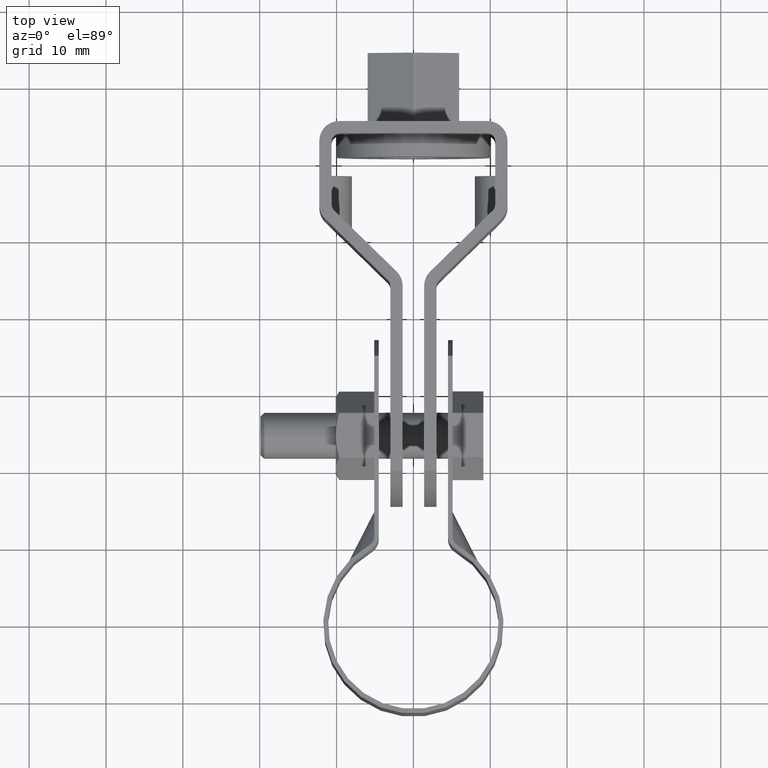
[diagram: clean part render]
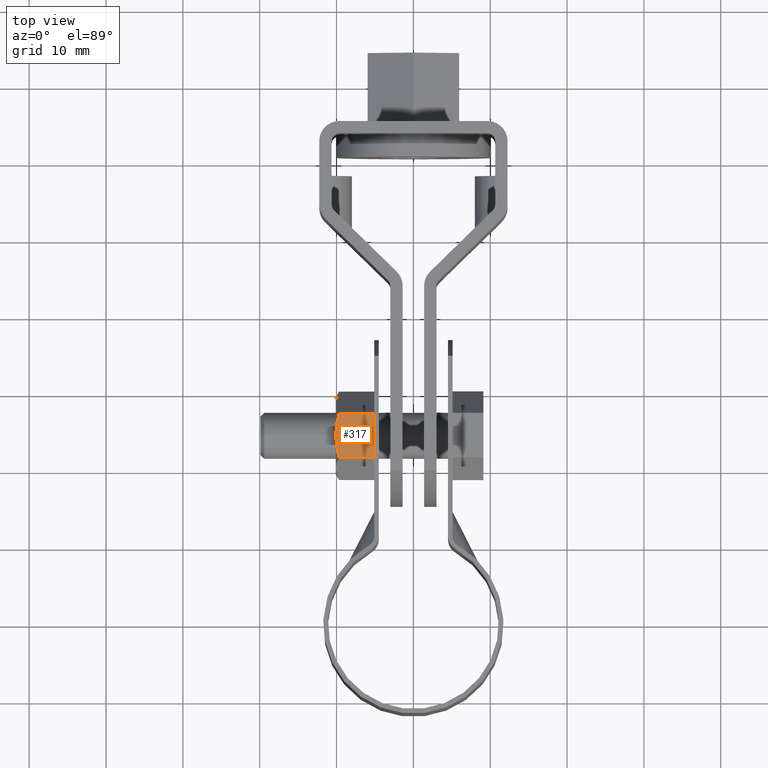
[diagram: same view with one face highlighted and labeled with its STEP entity id]
A machine part, top view. The second image highlights one B-rep face of the part: STEP entity #317.
In plain terms, the highlighted planar face has unit normal (0, 0, -1).
Its self-contained STEP definition (entity closure, byte-faithful):
#317 = ADVANCED_FACE( '', ( #501 ), #502, .F. );
#501 = FACE_OUTER_BOUND( '', #773, .T. );
#502 = PLANE( '', #774 );
#773 = EDGE_LOOP( '', ( #1343, #1344, #1345, #1346, #1347 ) );
#774 = AXIS2_PLACEMENT_3D( '', #1348, #1349, #1350 );
#1343 = ORIENTED_EDGE( '', *, *, #2077, .F. );
#1344 = ORIENTED_EDGE( '', *, *, #2044, .F. );
#1345 = ORIENTED_EDGE( '', *, *, #2078, .F. );
#1346 = ORIENTED_EDGE( '', *, *, #2061, .F. );
#1347 = ORIENTED_EDGE( '', *, *, #2072, .F. );
#1348 = CARTESIAN_POINT( '', ( -5.10000000000000, 27.5446103723371, 5.00000000000000 ) );
#1349 = DIRECTION( '', ( 0.000000000000000, 0.000000000000000, -1.00000000000000 ) );
#1350 = DIRECTION( '', ( -1.00000000000000, 0.000000000000000, 0.000000000000000 ) );
#2044 = EDGE_CURVE( '', #2435, #2438, #2439, .T. );
#2061 = EDGE_CURVE( '', #2467, #2469, #2470, .T. );
#2072 = EDGE_CURVE( '', #2488, #2467, #2490, .T. );
#2077 = EDGE_CURVE( '', #2438, #2488, #2497, .T. );
#2078 = EDGE_CURVE( '', #2469, #2435, #2498, .F. );
#2435 = VERTEX_POINT( '', #3113 );
#2438 = VERTEX_POINT( '', #3116 );
#2439 = B_SPLINE_CURVE_WITH_KNOTS( '', 3, ( #3117, #3118, #3119, #3120, #3121, #3122 ), .UNSPECIFIED., .F., .F., ( 4, 2, 4 ), ( 0.00519725619092075, 0.00663292719463864, 0.00806859819835653 ), .UNSPECIFIED. );
#2467 = VERTEX_POINT( '', #3170 );
#2469 = VERTEX_POINT( '', #3172 );
#2470 = LINE( '', #3173, #3174 );
#2488 = VERTEX_POINT( '', #3196 );
#2490 = LINE( '', #3198, #3199 );
#2497 = B_SPLINE_CURVE_WITH_KNOTS( '', 3, ( #3217, #3218, #3219, #3220, #3221, #3222 ), .UNSPECIFIED., .F., .F., ( 4, 2, 4 ), ( 0.00806859819835653, 0.00950497228174399, 0.0109413463651315 ), .UNSPECIFIED. );
#2498 = LINE( '', #3223, #3224 );
#3113 = CARTESIAN_POINT( '', ( -9.66698729810726, 21.8184048534895, 5.00000000000000 ) );
#3116 = CARTESIAN_POINT( '', ( -10.0999999999994, 24.6578590263893, 5.00000000000000 ) );
#3117 = CARTESIAN_POINT( '', ( -9.66698729810710, 21.8184048534896, 5.00000000000000 ) );
#3118 = CARTESIAN_POINT( '', ( -9.79876289079364, 22.2806034117465, 5.00000000000000 ) );
#3119 = CARTESIAN_POINT( '', ( -9.90898038823746, 22.7537390608742, 5.00000000000000 ) );
#3120 = CARTESIAN_POINT( '', ( -10.0594851340817, 23.7016618374704, 5.00000000000000 ) );
#3121 = CARTESIAN_POINT( '', ( -10.0999999999992, 24.1782364885179, 5.00000000000000 ) );
#3122 = CARTESIAN_POINT( '', ( -10.0999999999992, 24.6578590263894, 5.00000000000000 ) );
#3170 = CARTESIAN_POINT( '', ( -5.10000000000000, 27.4973131992892, 5.00000000000000 ) );
#3172 = CARTESIAN_POINT( '', ( -5.10000000000000, 21.8184048534895, 5.00000000000000 ) );
#3173 = CARTESIAN_POINT( '', ( -5.10000000000000, 30.4078590263887, 5.00000000000000 ) );
#3174 = VECTOR( '', #3916, 999.999999999962 );
#3196 = CARTESIAN_POINT( '', ( -9.66698729810726, 27.4973131992892, 5.00000000000000 ) );
#3198 = CARTESIAN_POINT( '', ( -5.10000000000000, 27.4973131992892, 5.00000000000000 ) );
#3199 = VECTOR( '', #3939, 999.999999999962 );
#3217 = CARTESIAN_POINT( '', ( -10.0999999999992, 24.6578590263894, 5.00000000000000 ) );
#3218 = CARTESIAN_POINT( '', ( -10.0999999999992, 25.1377164459674, 5.00000000000000 ) );
#3219 = CARTESIAN_POINT( '', ( -10.0583898630209, 25.6240982644573, 5.00000000000000 ) );
#3220 = CARTESIAN_POINT( '', ( -9.90676947592992, 26.5726906900164, 5.00000000000000 ) );
#3221 = CARTESIAN_POINT( '', ( -9.79793774197706, 27.0380088233735, 5.00000000000000 ) );
#3222 = CARTESIAN_POINT( '', ( -9.66698729810709, 27.4973131992891, 5.00000000000000 ) );
#3223 = CARTESIAN_POINT( '', ( -5.10000000000000, 21.8184048534895, 5.00000000000000 ) );
#3224 = VECTOR( '', #3944, 999.999999999962 );
#3916 = DIRECTION( '', ( 0.000000000000000, -1.00000000000000, 0.000000000000000 ) );
#3939 = DIRECTION( '', ( 1.00000000000000, 0.000000000000000, 0.000000000000000 ) );
#3944 = DIRECTION( '', ( 1.00000000000000, 0.000000000000000, 0.000000000000000 ) );